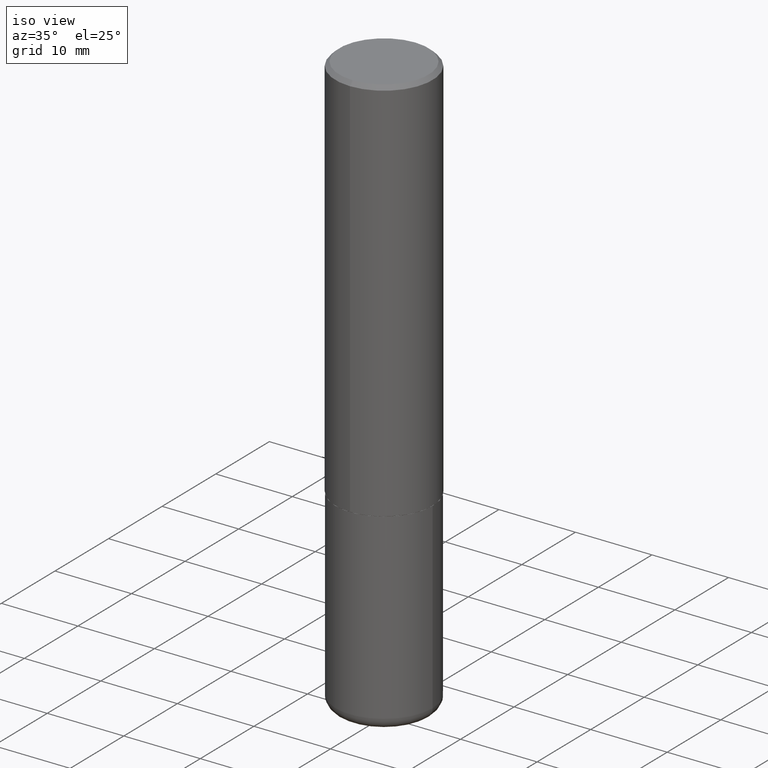
[diagram: clean part render]
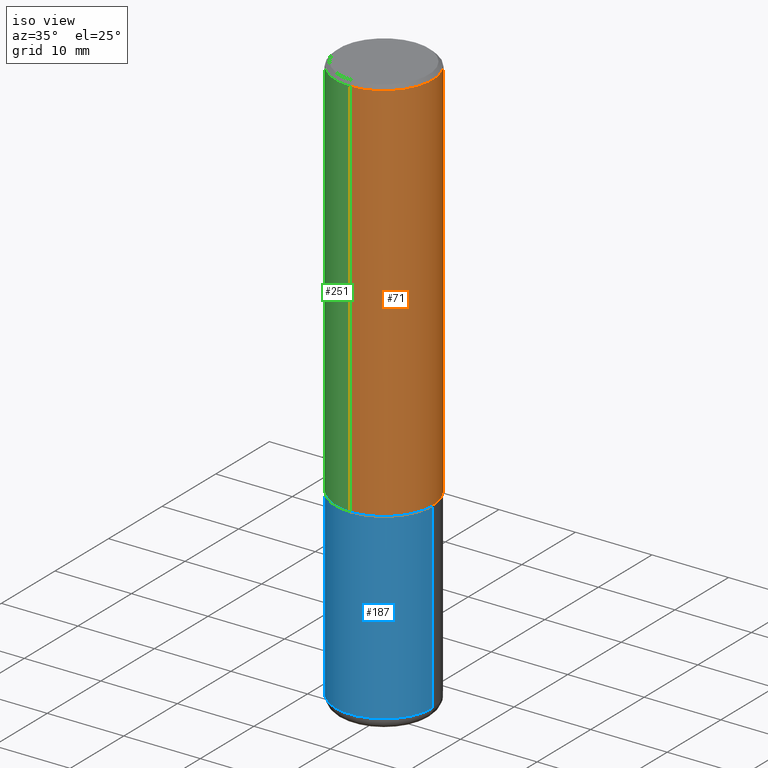
[diagram: same view with three faces highlighted in distinct colors, each labeled with its STEP entity id]
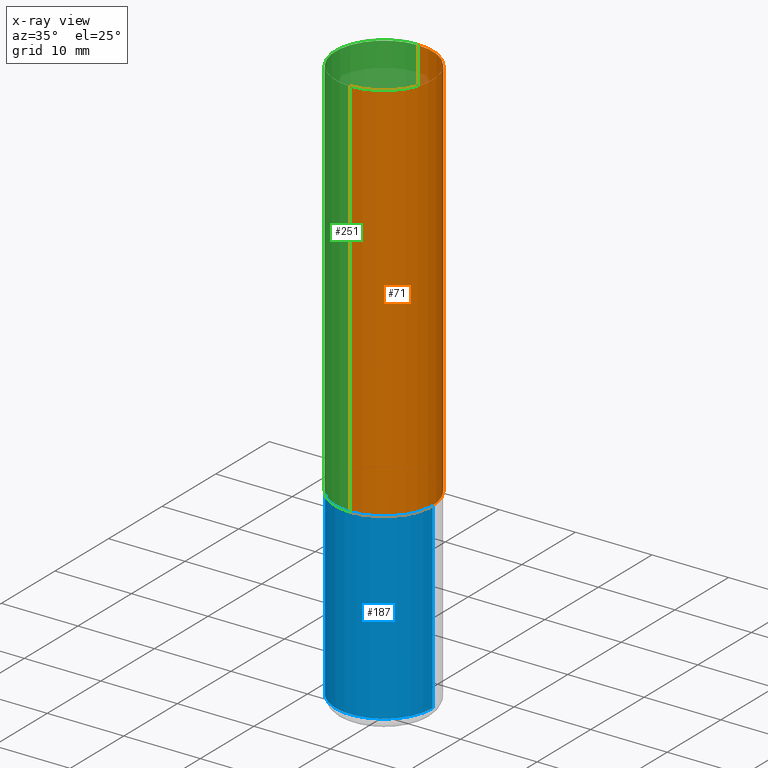
[diagram: x-ray of the same camera — body ghosted, the three highlighted faces saturated]
A machine part, iso view with three faces highlighted in distinct colors.
The next image is the same camera in x-ray (body ghosted, the three faces saturated) — at least one of them is partly hidden behind the body in this view.
Their STEP definitions:

[orange] entity #71 — the highlighted cylindrical surface (partial cylindrical patch) has radius 6.35 mm, axis along (-0, 0, 1).
#17 = FACE_OUTER_BOUND ( 'NONE', #25, .T. ) ;
#25 = EDGE_LOOP ( 'NONE', ( #339, #215, #258, #245 ) ) ;
#31 = DIRECTION ( 'NONE',  ( -2.444313243422440590E-29, 3.493136170489874041E-15, 1.000000000000000000 ) ) ;
#38 = EDGE_CURVE ( 'NONE', #396, #152, #322, .T. ) ;
#43 = CARTESIAN_POINT ( 'NONE',  ( -1.745740669421519543E-15, -0.2500000000000072164, -1.998999999999999444 ) ) ;
#54 = DIRECTION ( 'NONE',  ( -6.982962677686265922E-15, -1.000000000000000000, 3.500180241882337261E-15 ) ) ;
#58 = DIRECTION ( 'NONE',  ( -6.982962677686266711E-15, -1.000000000000000000, 3.493136170489874436E-15 ) ) ;
#64 = VERTEX_POINT ( 'NONE', #370 ) ;
#71 = ADVANCED_FACE ( 'NONE', ( #17 ), #155, .T. ) ;
#96 = AXIS2_PLACEMENT_3D ( 'NONE', #407, #334, #54 ) ;
#109 = VERTEX_POINT ( 'NONE', #43 ) ;
#125 = CARTESIAN_POINT ( 'NONE',  ( 0.000000000000000000, 0.000000000000000000, 0.000000000000000000 ) ) ;
#127 = AXIS2_PLACEMENT_3D ( 'NONE', #125, #219, #58 ) ;
#130 = EDGE_CURVE ( 'NONE', #109, #396, #221, .T. ) ;
#152 = VERTEX_POINT ( 'NONE', #349 ) ;
#155 = CYLINDRICAL_SURFACE ( 'NONE', #127, 0.2500000000000001110 ) ;
#160 = DIRECTION ( 'NONE',  ( -2.444313243422440590E-29, 3.493136170489874041E-15, 1.000000000000000000 ) ) ;
#162 = DIRECTION ( 'NONE',  ( -6.982962677686265922E-15, -1.000000000000000000, 3.278217592397112312E-15 ) ) ;
#180 = EDGE_CURVE ( 'NONE', #109, #64, #301, .T. ) ;
#191 = CARTESIAN_POINT ( 'NONE',  ( -1.745740669421567467E-15, -0.2500000000000001110, 8.732840426224690034E-16 ) ) ;
#196 = VECTOR ( 'NONE', #31, 39.37007874015748143 ) ;
#201 = VECTOR ( 'NONE', #160, 39.37007874015748143 ) ;
#215 = ORIENTED_EDGE ( 'NONE', *, *, #257, .T. ) ;
#219 = DIRECTION ( 'NONE',  ( -2.444313243422440590E-29, 3.493136170489874041E-15, 1.000000000000000000 ) ) ;
#221 = LINE ( 'NONE', #191, #201 ) ;
#245 = ORIENTED_EDGE ( 'NONE', *, *, #130, .F. ) ;
#257 = EDGE_CURVE ( 'NONE', #64, #152, #324, .T. ) ;
#258 = ORIENTED_EDGE ( 'NONE', *, *, #38, .F. ) ;
#288 = CARTESIAN_POINT ( 'NONE',  ( 4.886182173601459090E-29, -6.982779204809258546E-15, -1.999000000000000110 ) ) ;
#301 = CIRCLE ( 'NONE', #412, 0.2500000000000002776 ) ;
#318 = DIRECTION ( 'NONE',  ( -2.444313243422440590E-29, 3.493136170489874041E-15, 1.000000000000000000 ) ) ;
#322 = CIRCLE ( 'NONE', #96, 0.2500000000000000000 ) ;
#324 = LINE ( 'NONE', #326, #196 ) ;
#326 = CARTESIAN_POINT ( 'NONE',  ( 1.776356839400251254E-15, 0.2500000000000001110, -8.732840426224690034E-16 ) ) ;
#334 = DIRECTION ( 'NONE',  ( -2.444313243422440590E-29, 3.493136170489874041E-15, 1.000000000000000000 ) ) ;
#339 = ORIENTED_EDGE ( 'NONE', *, *, #180, .T. ) ;
#349 = CARTESIAN_POINT ( 'NONE',  ( 1.745740669421566875E-15, 0.2499999999999999167, -0.02000000000000093023 ) ) ;
#370 = CARTESIAN_POINT ( 'NONE',  ( 1.776356839400276103E-15, 0.2499999999999933109, -1.999000000000000998 ) ) ;
#386 = CARTESIAN_POINT ( 'NONE',  ( -1.715124499442882299E-15, -0.2500000000000000555, -0.01999999999999918163 ) ) ;
#396 = VERTEX_POINT ( 'NONE', #386 ) ;
#407 = CARTESIAN_POINT ( 'NONE',  ( 4.888626486844894878E-31, -6.986272340979767558E-17, -0.02000000000000005593 ) ) ;
#412 = AXIS2_PLACEMENT_3D ( 'NONE', #288, #318, #162 ) ;

[blue] entity #187 — the highlighted cylindrical surface (partial cylindrical patch) has radius 6.35 mm, axis along (-0, 0, 1).
#1 = CARTESIAN_POINT ( 'NONE',  ( 0.2500000000000000000, -8.728703347107858632E-15, -2.000000000000000444 ) ) ;
#23 = VERTEX_POINT ( 'NONE', #106 ) ;
#30 = EDGE_CURVE ( 'NONE', #23, #376, #86, .T. ) ;
#51 = VERTEX_POINT ( 'NONE', #186 ) ;
#72 = FACE_OUTER_BOUND ( 'NONE', #331, .T. ) ;
#84 = CARTESIAN_POINT ( 'NONE',  ( 0.2500000000000000000, -1.745740669421566678E-15, 1.219044193948983948E-29 ) ) ;
#86 = CIRCLE ( 'NONE', #387, 0.2500000000000000000 ) ;
#106 = CARTESIAN_POINT ( 'NONE',  ( -0.2500000000000000000, -6.847602067542319531E-15, -2.000000000000000444 ) ) ;
#119 = DIRECTION ( 'NONE',  ( 1.000000000000000000, -6.982962677686266711E-15, 0.000000000000000000 ) ) ;
#120 = EDGE_CURVE ( 'NONE', #239, #376, #249, .T. ) ;
#145 = CYLINDRICAL_SURFACE ( 'NONE', #266, 0.2500000000000000000 ) ;
#148 = AXIS2_PLACEMENT_3D ( 'NONE', #292, #325, #260 ) ;
#156 = VECTOR ( 'NONE', #293, 39.37007874015748143 ) ;
#166 = LINE ( 'NONE', #415, #156 ) ;
#186 = CARTESIAN_POINT ( 'NONE',  ( -0.2499999999999998335, -8.488598296798600727E-15, -2.940000000000000391 ) ) ;
#187 = ADVANCED_FACE ( 'NONE', ( #72 ), #145, .T. ) ;
#239 = VERTEX_POINT ( 'NONE', #377 ) ;
#242 = DIRECTION ( 'NONE',  ( 1.000000000000000000, -6.982962677686266711E-15, 4.876176775795935793E-29 ) ) ;
#244 = ORIENTED_EDGE ( 'NONE', *, *, #285, .T. ) ;
#249 = LINE ( 'NONE', #84, #261 ) ;
#260 = DIRECTION ( 'NONE',  ( 1.000000000000000000, -6.982962677686262766E-15, 0.000000000000000000 ) ) ;
#261 = VECTOR ( 'NONE', #372, 39.37007874015748143 ) ;
#266 = AXIS2_PLACEMENT_3D ( 'NONE', #271, #392, #242 ) ;
#271 = CARTESIAN_POINT ( 'NONE',  ( 0.000000000000000000, 0.000000000000000000, 0.000000000000000000 ) ) ;
#284 = DIRECTION ( 'NONE',  ( -2.445468806185136597E-29, 3.491481338843145583E-15, 1.000000000000000000 ) ) ;
#285 = EDGE_CURVE ( 'NONE', #51, #239, #295, .T. ) ;
#286 = CARTESIAN_POINT ( 'NONE',  ( 4.890937612370273754E-29, -6.982962677686291954E-15, -2.000000000000000444 ) ) ;
#292 = CARTESIAN_POINT ( 'NONE',  ( 7.189678290184301639E-29, -1.026495513619884961E-14, -2.940000000000000391 ) ) ;
#293 = DIRECTION ( 'NONE',  ( -2.445468806185136877E-29, 3.491481338843145188E-15, 1.000000000000000000 ) ) ;
#295 = CIRCLE ( 'NONE', #148, 0.2500000000000000000 ) ;
#325 = DIRECTION ( 'NONE',  ( -2.445468806185136597E-29, 3.491481338843145583E-15, 1.000000000000000000 ) ) ;
#330 = EDGE_CURVE ( 'NONE', #51, #23, #166, .T. ) ;
#331 = EDGE_LOOP ( 'NONE', ( #378, #244, #336, #360 ) ) ;
#336 = ORIENTED_EDGE ( 'NONE', *, *, #120, .T. ) ;
#360 = ORIENTED_EDGE ( 'NONE', *, *, #30, .F. ) ;
#372 = DIRECTION ( 'NONE',  ( -2.445468806185136877E-29, 3.491481338843145188E-15, 1.000000000000000000 ) ) ;
#376 = VERTEX_POINT ( 'NONE', #1 ) ;
#377 = CARTESIAN_POINT ( 'NONE',  ( 0.2499999999999998335, -1.201069580562041471E-14, -2.940000000000000391 ) ) ;
#378 = ORIENTED_EDGE ( 'NONE', *, *, #330, .F. ) ;
#387 = AXIS2_PLACEMENT_3D ( 'NONE', #286, #284, #119 ) ;
#392 = DIRECTION ( 'NONE',  ( -2.445468806185136597E-29, 3.491481338843145583E-15, 1.000000000000000000 ) ) ;
#415 = CARTESIAN_POINT ( 'NONE',  ( -0.2500000000000000000, 1.776356839400250465E-15, -1.229733772563726445E-29 ) ) ;

[green] entity #251 — the highlighted cylindrical surface (partial cylindrical patch) has radius 6.35 mm, axis along (-0, 0, 1).
#2 = CIRCLE ( 'NONE', #139, 0.2500000000000000000 ) ;
#5 = FACE_OUTER_BOUND ( 'NONE', #15, .T. ) ;
#15 = EDGE_LOOP ( 'NONE', ( #335, #143, #146, #29 ) ) ;
#29 = ORIENTED_EDGE ( 'NONE', *, *, #236, .F. ) ;
#31 = DIRECTION ( 'NONE',  ( -2.444313243422440590E-29, 3.493136170489874041E-15, 1.000000000000000000 ) ) ;
#37 = CARTESIAN_POINT ( 'NONE',  ( 4.886182173601459090E-29, -6.982779204809258546E-15, -1.999000000000000110 ) ) ;
#43 = CARTESIAN_POINT ( 'NONE',  ( -1.745740669421519543E-15, -0.2500000000000072164, -1.998999999999999444 ) ) ;
#64 = VERTEX_POINT ( 'NONE', #370 ) ;
#109 = VERTEX_POINT ( 'NONE', #43 ) ;
#116 = AXIS2_PLACEMENT_3D ( 'NONE', #194, #357, #133 ) ;
#130 = EDGE_CURVE ( 'NONE', #109, #396, #221, .T. ) ;
#133 = DIRECTION ( 'NONE',  ( -6.982962677686266711E-15, -1.000000000000000000, 3.493136170489874436E-15 ) ) ;
#139 = AXIS2_PLACEMENT_3D ( 'NONE', #385, #356, #171 ) ;
#143 = ORIENTED_EDGE ( 'NONE', *, *, #393, .T. ) ;
#146 = ORIENTED_EDGE ( 'NONE', *, *, #130, .T. ) ;
#152 = VERTEX_POINT ( 'NONE', #349 ) ;
#160 = DIRECTION ( 'NONE',  ( -2.444313243422440590E-29, 3.493136170489874041E-15, 1.000000000000000000 ) ) ;
#171 = DIRECTION ( 'NONE',  ( -6.982962677686265922E-15, -1.000000000000000000, 3.500180241882337261E-15 ) ) ;
#175 = AXIS2_PLACEMENT_3D ( 'NONE', #37, #388, #205 ) ;
#191 = CARTESIAN_POINT ( 'NONE',  ( -1.745740669421567467E-15, -0.2500000000000001110, 8.732840426224690034E-16 ) ) ;
#194 = CARTESIAN_POINT ( 'NONE',  ( 0.000000000000000000, 0.000000000000000000, 0.000000000000000000 ) ) ;
#196 = VECTOR ( 'NONE', #31, 39.37007874015748143 ) ;
#201 = VECTOR ( 'NONE', #160, 39.37007874015748143 ) ;
#205 = DIRECTION ( 'NONE',  ( -6.982962677686265922E-15, -1.000000000000000000, 3.278217592397112312E-15 ) ) ;
#221 = LINE ( 'NONE', #191, #201 ) ;
#236 = EDGE_CURVE ( 'NONE', #152, #396, #2, .T. ) ;
#251 = ADVANCED_FACE ( 'NONE', ( #5 ), #384, .T. ) ;
#257 = EDGE_CURVE ( 'NONE', #64, #152, #324, .T. ) ;
#283 = CIRCLE ( 'NONE', #175, 0.2500000000000002776 ) ;
#324 = LINE ( 'NONE', #326, #196 ) ;
#326 = CARTESIAN_POINT ( 'NONE',  ( 1.776356839400251254E-15, 0.2500000000000001110, -8.732840426224690034E-16 ) ) ;
#335 = ORIENTED_EDGE ( 'NONE', *, *, #257, .F. ) ;
#349 = CARTESIAN_POINT ( 'NONE',  ( 1.745740669421566875E-15, 0.2499999999999999167, -0.02000000000000093023 ) ) ;
#356 = DIRECTION ( 'NONE',  ( -2.444313243422440590E-29, 3.493136170489874041E-15, 1.000000000000000000 ) ) ;
#357 = DIRECTION ( 'NONE',  ( -2.444313243422440590E-29, 3.493136170489874041E-15, 1.000000000000000000 ) ) ;
#370 = CARTESIAN_POINT ( 'NONE',  ( 1.776356839400276103E-15, 0.2499999999999933109, -1.999000000000000998 ) ) ;
#384 = CYLINDRICAL_SURFACE ( 'NONE', #116, 0.2500000000000001110 ) ;
#385 = CARTESIAN_POINT ( 'NONE',  ( 4.888626486844894878E-31, -6.986272340979767558E-17, -0.02000000000000005593 ) ) ;
#386 = CARTESIAN_POINT ( 'NONE',  ( -1.715124499442882299E-15, -0.2500000000000000555, -0.01999999999999918163 ) ) ;
#388 = DIRECTION ( 'NONE',  ( -2.444313243422440590E-29, 3.493136170489874041E-15, 1.000000000000000000 ) ) ;
#393 = EDGE_CURVE ( 'NONE', #64, #109, #283, .T. ) ;
#396 = VERTEX_POINT ( 'NONE', #386 ) ;